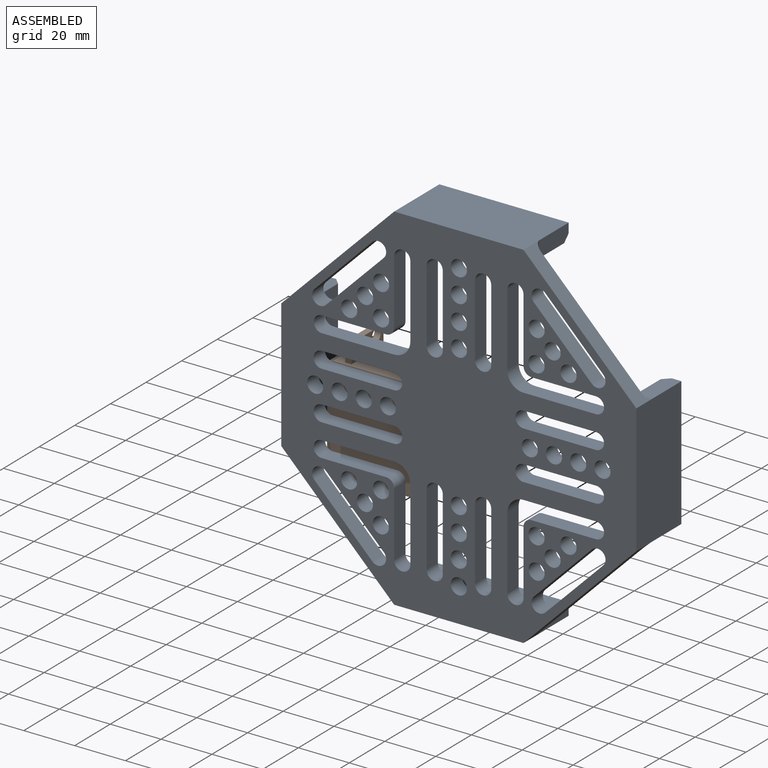
[diagram: assembled view]
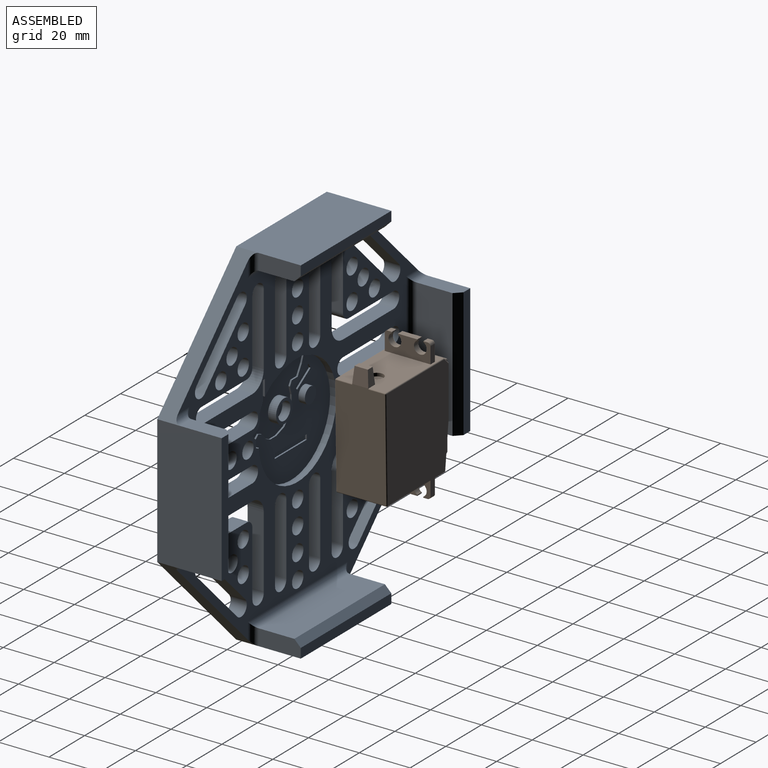
[diagram: assembled view, second angle]
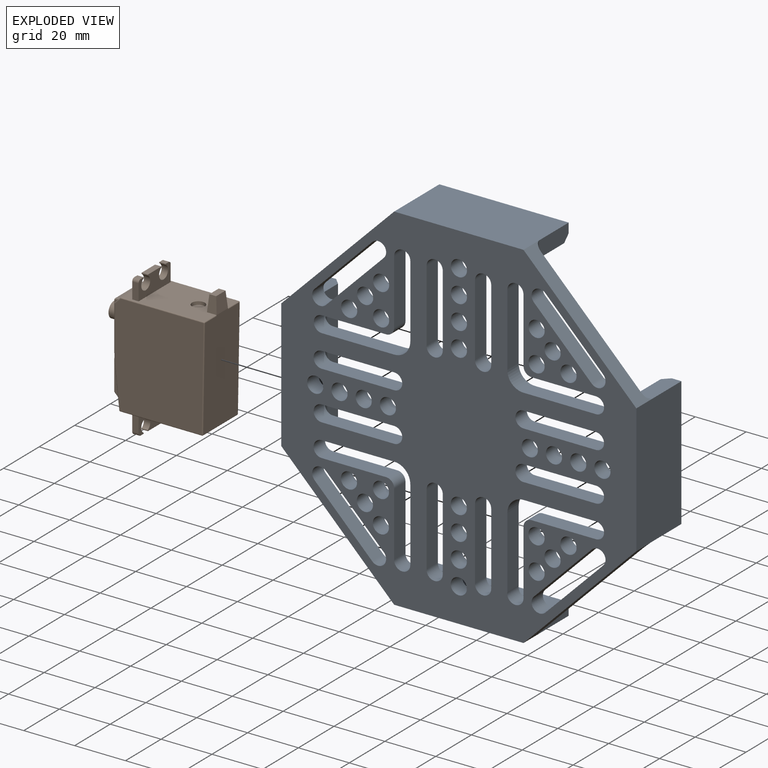
[diagram: exploded view]
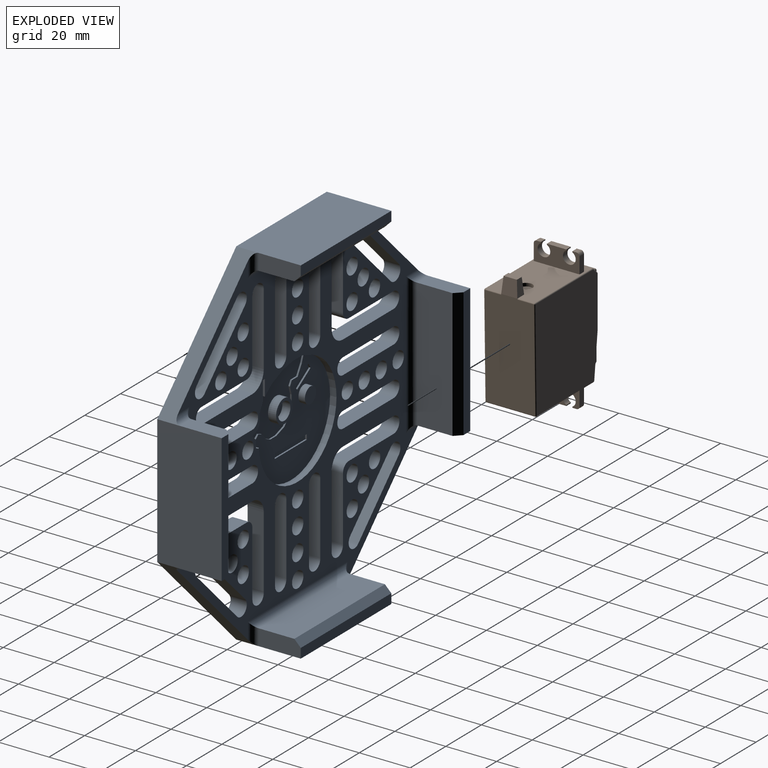
[diagram: exploded view, second angle]
ASSEMBLY  parts=2 mates=2
PART A: 208 faces, bbox 139.6x25.4x139.8 mm
  f0: cylinder r=1.23mm len=2.46mm, axis (0,1,0), area 4.9mm2, adj f173,f175
  f1: cylinder r=1.23mm len=2.46mm, axis (0,1,0), area 4.9mm2, adj f173,f174
  f2: cylinder r=1.23mm len=2.46mm, axis (0,1,0), area 4.9mm2, adj f173,f181
  f3: cylinder r=21.83mm len=43.62mm, axis (0,1,0), area 243.5mm2, adj f4,f5,f144,f145
  f4: plane 43.62x42.94mm, normal (0,1,0), area 968.1mm2, adj f3,f139,f140,f141,f142,f144,f145,f147
  f5: plane 134.66x134.55mm, normal (0,1,0), area 6670.3mm2, adj f3,f27,f28,f29,f30,f31,f32,f33
  f6: plane 139.76x139.62mm, normal (0,-1,0), area 10190.2mm2, adj f7,f8,f9,f10,f27,f28,f29,f30
  f7: plane 50.76x25.32mm, normal (-1,0,0), area 1285.2mm2, adj f6,f15,f16,f17,f28,f29
  f8: plane 50.85x25.37mm, normal (0,0,1), area 1290.3mm2, adj f6,f19,f20,f21,f29,f30
  f9: plane 50.76x25.32mm, normal (1,0,0), area 1285.2mm2, adj f6,f11,f12,f13,f27,f30
  f10: plane 50.85x25.37mm, normal (0,0,-1), area 1290.3mm2, adj f6,f23,f24,f25,f27,f28
  f11: plane 16.43x6.35mm, normal (0,0,-1), area 101.1mm2, adj f9,f13,f14,f42,f191
  f12: plane 16.43x6.35mm, normal (0,0,1), area 101.1mm2, adj f9,f13,f14,f41,f191
  f13: plane 50.76x3.81mm, normal (0,1,0), area 193.4mm2, adj f9,f11,f12,f191
  f14: plane 50.76x13.89mm, normal (-1,0,0), area 705.1mm2, adj f11,f12,f31,f191
  f15: plane 16.43x6.35mm, normal (0,0,-1), area 101.1mm2, adj f7,f16,f18,f37,f190
  f16: plane 50.76x3.81mm, normal (0,1,0), area 193.4mm2, adj f7,f15,f17,f190
  f17: plane 16.43x6.35mm, normal (0,0,1), area 101.1mm2, adj f7,f16,f18,f36,f190
  f18: plane 50.76x13.89mm, normal (1,0,0), area 705.1mm2, adj f15,f17,f33,f190
  f19: plane 16.48x6.35mm, normal (-1,0,0), area 101.4mm2, adj f8,f20,f22,f39,f189
  f20: plane 50.85x3.81mm, normal (0,1,0), area 193.7mm2, adj f8,f19,f21,f189
  f21: plane 16.48x6.35mm, normal (1,0,0), area 101.4mm2, adj f8,f20,f22,f40,f189
  f22: plane 50.85x13.94mm, normal (0,0,-1), area 709mm2, adj f19,f21,f32,f189
  f23: plane 16.48x6.35mm, normal (1,0,0), area 101.4mm2, adj f10,f24,f26,f35,f188
  f24: plane 50.85x3.81mm, normal (0,1,0), area 193.7mm2, adj f10,f23,f25,f188
  f25: plane 16.48x6.35mm, normal (-1,0,0), area 101.4mm2, adj f10,f24,f26,f38,f188
  f26: plane 50.85x13.94mm, normal (0,0,1), area 709mm2, adj f23,f25,f34,f188
  f27: plane 44.52x44.38mm, normal (0.71,0,-0.71), area 403.1mm2, adj f5,f6,f9,f10,f35,f42
  f28: plane 44.52x44.38mm, normal (-0.71,0,-0.71), area 403.1mm2, adj f5,f6,f7,f10,f37,f38
  f29: plane 44.48x44.38mm, normal (-0.71,0,0.71), area 402.9mm2, adj f5,f6,f7,f8,f36,f39
  f30: plane 44.48x44.38mm, normal (0.71,0,0.71), area 402.9mm2, adj f5,f6,f8,f9,f40,f41
  f31: cylinder r=2.54mm len=55.84mm, axis (0,0,1), area 209.9mm2, adj f5,f14,f41,f42
  f32: cylinder r=2.54mm len=55.93mm, axis (1,0,0), area 210.3mm2, adj f5,f22,f39,f40
  f33: cylinder r=2.54mm len=55.84mm, axis (0,0,1), area 209.9mm2, adj f5,f18,f36,f37
  f34: cylinder r=2.54mm len=55.93mm, axis (-1,0,0), area 210.3mm2, adj f5,f26,f35,f38
  f35: cylinder r=2.54mm len=8.89mm, axis (0,0,-1), area 25.3mm2, adj f5,f23,f27,f34
  f36: cylinder r=2.54mm len=8.89mm, axis (-1,0,0), area 25.3mm2, adj f5,f17,f29,f33
  f37: cylinder r=2.54mm len=8.89mm, axis (-1,0,0), area 25.3mm2, adj f5,f15,f28,f33
  f38: cylinder r=2.54mm len=8.89mm, axis (0,0,-1), area 25.3mm2, adj f5,f25,f28,f34
  f39: cylinder r=2.54mm len=8.89mm, axis (0,0,-1), area 25.3mm2, adj f5,f19,f29,f32
  f40: cylinder r=2.54mm len=8.89mm, axis (0,0,1), area 25.3mm2, adj f5,f21,f30,f32
  f41: cylinder r=2.54mm len=8.89mm, axis (1,0,0), area 25.3mm2, adj f5,f12,f30,f31
  f42: cylinder r=2.54mm len=8.89mm, axis (1,0,0), area 25.3mm2, adj f5,f11,f27,f31
  f43: cylinder r=3.17mm len=6.35mm, axis (0,1,0), area 63.3mm2, adj f5,f6,f44,f46
  f44: plane 28.51x6.35mm, normal (0,0,-1), area 181mm2, adj f5,f6,f43,f45
  f45: cylinder r=3.17mm len=6.35mm, axis (0,1,0), area 63.3mm2, adj f5,f6,f44,f46
  f46: plane 28.51x6.35mm, normal (0,0,1), area 181mm2, adj f5,f6,f43,f45
  f47: cylinder r=3.17mm len=6.35mm, axis (0,1,0), area 63.3mm2, adj f5,f6,f48,f50
  f48: plane 28.51x6.35mm, normal (0,0,-1), area 181mm2, adj f5,f6,f47,f49
  f49: cylinder r=3.17mm len=6.35mm, axis (0,1,0), area 63.3mm2, adj f5,f6,f48,f50
  f50: plane 28.51x6.35mm, normal (0,0,1), area 181mm2, adj f5,f6,f47,f49
  f51: cylinder r=3.17mm len=6.35mm, axis (0,1,0), area 63.3mm2, adj f5,f6,f52,f58
  f52: plane 28.55x6.35mm, normal (-1,0,0), area 181.3mm2, adj f5,f6,f51,f53
  f53: cylinder r=6.35mm len=6.41mm, axis (0,1,0), area 63.7mm2, adj f5,f6,f52,f54
  f54: plane 28.43x6.35mm, normal (0,0,1), area 180.5mm2, adj f5,f6,f53,f55
  f55: cylinder r=3.17mm len=6.35mm, axis (0,1,0), area 63.3mm2, adj f5,f6,f54,f56
  f56: plane 25.25x6.35mm, normal (0,0,-1), area 160.3mm2, adj f5,f6,f55,f57
  f57: cylinder r=3.17mm len=6.35mm, axis (0,1,0), area 31.7mm2, adj f5,f6,f56,f58
  f58: plane 25.43x6.35mm, normal (1,0,0), area 161.5mm2, adj f5,f6,f51,f57
  f59: cylinder r=3.18mm len=6.35mm, axis (0,1,0), area 64.4mm2, adj f5,f6,f60,f66
  f60: plane 28.51x6.35mm, normal (0,0,-1), area 181mm2, adj f5,f6,f59,f61
  f61: cylinder r=6.35mm len=6.35mm, axis (0,1,0), area 62.8mm2, adj f5,f6,f60,f62
  f62: plane 28.64x6.35mm, normal (-1,0,0), area 181.9mm2, adj f5,f6,f61,f63
  f63: cylinder r=3.17mm len=6.35mm, axis (0,1,0), area 63.3mm2, adj f5,f6,f62,f64
  f64: plane 25.47x6.35mm, normal (1,0,0), area 161.7mm2, adj f5,f6,f63,f65
  f65: cylinder r=3.17mm len=6.35mm, axis (0,1,0), area 31.7mm2, adj f5,f6,f64,f66
  f66: plane 25.25x6.35mm, normal (0,0,1), area 160.3mm2, adj f5,f6,f59,f65
  f67: cylinder r=3.17mm len=6.35mm, axis (0,1,0), area 63.3mm2, adj f5,f6,f68,f70
  f68: plane 28.51x6.35mm, normal (1,0,0), area 181mm2, adj f5,f6,f67,f69
  f69: cylinder r=3.17mm len=6.35mm, axis (0,1,0), area 63.3mm2, adj f5,f6,f68,f70
  f70: plane 28.51x6.35mm, normal (-1,0,0), area 181mm2, adj f5,f6,f67,f69
  f71: cylinder r=3.17mm len=6.35mm, axis (0,1,0), area 63.3mm2, adj f5,f6,f72,f74
  f72: plane 28.51x6.35mm, normal (1,0,0), area 181mm2, adj f5,f6,f71,f73
  f73: cylinder r=3.17mm len=6.35mm, axis (0,1,0), area 63.3mm2, adj f5,f6,f72,f74
  f74: plane 28.51x6.35mm, normal (-1,0,0), area 181mm2, adj f5,f6,f71,f73
  f75: cylinder r=3.17mm len=6.35mm, axis (0,1,0), area 63.3mm2, adj f5,f6,f76,f78
  f76: plane 28.51x6.35mm, normal (0,0,1), area 181mm2, adj f5,f6,f75,f77
  f77: cylinder r=3.17mm len=6.35mm, axis (0,1,0), area 63.3mm2, adj f5,f6,f76,f78
  f78: plane 28.51x6.35mm, normal (0,0,-1), area 181mm2, adj f5,f6,f75,f77
  f79: cylinder r=3.17mm len=6.35mm, axis (0,1,0), area 63.3mm2, adj f5,f6,f80,f82
  f80: plane 28.51x6.35mm, normal (0,0,1), area 181mm2, adj f5,f6,f79,f81
  f81: cylinder r=3.17mm len=6.35mm, axis (0,1,0), area 63.3mm2, adj f5,f6,f80,f82
  f82: plane 28.51x6.35mm, normal (0,0,-1), area 181mm2, adj f5,f6,f79,f81
  f83: cylinder r=3.17mm len=6.35mm, axis (0,1,0), area 63.3mm2, adj f5,f6,f84,f86
  f84: plane 28.51x6.35mm, normal (-1,0,0), area 181mm2, adj f5,f6,f83,f85
  f85: cylinder r=3.17mm len=6.35mm, axis (0,1,0), area 63.3mm2, adj f5,f6,f84,f86
  f86: plane 28.51x6.35mm, normal (1,0,0), area 181mm2, adj f5,f6,f83,f85
  f87: cylinder r=3.17mm len=6.35mm, axis (0,1,0), area 63.3mm2, adj f5,f6,f88,f90
  f88: plane 28.51x6.35mm, normal (1,0,0), area 181mm2, adj f5,f6,f87,f89
  f89: cylinder r=3.17mm len=6.35mm, axis (0,1,0), area 63.3mm2, adj f5,f6,f88,f90
  f90: plane 28.51x6.35mm, normal (-1,0,0), area 181mm2, adj f5,f6,f87,f89
  f91: cylinder r=3.19mm len=6.39mm, axis (0,1,0), area 67.2mm2, adj f5,f6,f92,f98
  f92: plane 28.08x6.35mm, normal (1,0,0), area 178.3mm2, adj f5,f6,f91,f93
  f93: cylinder r=6.35mm len=6.4mm, axis (0,1,0), area 63.6mm2, adj f5,f6,f92,f94
  f94: plane 28.51x6.35mm, normal (0,0,-1), area 181mm2, adj f5,f6,f93,f95
  f95: cylinder r=3.17mm len=6.35mm, axis (0,1,0), area 63.3mm2, adj f5,f6,f94,f96
  f96: plane 25.33x6.35mm, normal (0,0,1), area 160.9mm2, adj f5,f6,f95,f97
  f97: cylinder r=3.17mm len=6.35mm, axis (0,1,0), area 31.7mm2, adj f5,f6,f96,f98
  f98: plane 25.38x6.35mm, normal (-1,0,0), area 161.2mm2, adj f5,f6,f91,f97
  f99: cylinder r=3.17mm len=6.35mm, axis (0,1,0), area 63.3mm2, adj f5,f6,f100,f106
  f100: plane 25.39x6.35mm, normal (-1,0,0), area 161.2mm2, adj f5,f6,f99,f101
  f101: cylinder r=3.17mm len=6.35mm, axis (0,1,0), area 31.7mm2, adj f5,f6,f100,f102
  f102: plane 25.33x6.35mm, normal (0,0,-1), area 160.9mm2, adj f5,f6,f101,f103
  f103: cylinder r=3.17mm len=6.35mm, axis (0,1,0), area 63.3mm2, adj f5,f6,f102,f104
  f104: plane 28.51x6.35mm, normal (0,0,1), area 181mm2, adj f5,f6,f103,f105
  f105: cylinder r=6.35mm len=6.39mm, axis (0,1,0), area 63.6mm2, adj f5,f6,f104,f106
  f106: plane 28.53x6.35mm, normal (1,0,0), area 181.1mm2, adj f5,f6,f99,f105
  f107: plane 22.79x22.74mm, normal (-0.71,0,0.71), area 204.5mm2, adj f5,f6,f108,f110
  f108: cylinder r=3.17mm len=6.35mm, axis (0,1,0), area 63.3mm2, adj f5,f6,f107,f109
  f109: plane 22.79x22.74mm, normal (0.71,0,-0.71), area 204.5mm2, adj f5,f6,f108,f110
  f110: cylinder r=3.17mm len=6.35mm, axis (0,1,0), area 63.3mm2, adj f5,f6,f107,f109
  f111: cylinder r=3.17mm len=6.35mm, axis (0,1,0), area 126.7mm2, adj f5,f6
  f112: cylinder r=3.17mm len=6.35mm, axis (0,1,0), area 126.7mm2, adj f5,f6
  f113: plane 22.79x22.74mm, normal (0.71,0,0.71), area 204.5mm2, adj f5,f6,f114,f116
  f114: cylinder r=3.17mm len=6.35mm, axis (0,1,0), area 63.3mm2, adj f5,f6,f113,f115
  f115: plane 22.79x22.74mm, normal (-0.71,0,-0.71), area 204.5mm2, adj f5,f6,f114,f116
  f116: cylinder r=3.17mm len=6.35mm, axis (0,1,0), area 63.3mm2, adj f5,f6,f113,f115
  f117: cylinder r=3.17mm len=6.35mm, axis (0,1,0), area 126.7mm2, adj f5,f6
  f118: cylinder r=3.17mm len=6.35mm, axis (0,1,0), area 126.7mm2, adj f5,f6
  f119: cylinder r=3.17mm len=6.35mm, axis (0,1,0), area 126.7mm2, adj f5,f6
  f120: cylinder r=3.17mm len=6.35mm, axis (0,1,0), area 126.7mm2, adj f5,f6
  f121: cylinder r=3.17mm len=6.35mm, axis (0,1,0), area 126.7mm2, adj f5,f6
  f122: cylinder r=3.17mm len=6.35mm, axis (0,1,0), area 126.7mm2, adj f5,f6
  f123: plane 22.8x22.73mm, normal (0.71,0,-0.71), area 204.5mm2, adj f5,f6,f124,f126
  f124: cylinder r=3.17mm len=6.35mm, axis (0,1,0), area 63.3mm2, adj f5,f6,f123,f125
  f125: plane 22.8x22.73mm, normal (-0.71,0,0.71), area 204.5mm2, adj f5,f6,f124,f126
  f126: cylinder r=3.17mm len=6.35mm, axis (0,1,0), area 63.3mm2, adj f5,f6,f123,f125
  f127: plane 22.8x22.73mm, normal (-0.71,0,-0.71), area 204.5mm2, adj f5,f6,f128,f130
  f128: cylinder r=3.17mm len=6.35mm, axis (0,1,0), area 63.3mm2, adj f5,f6,f127,f129
  f129: plane 22.8x22.73mm, normal (0.71,0,0.71), area 204.5mm2, adj f5,f6,f128,f130
  f130: cylinder r=3.17mm len=6.35mm, axis (0,1,0), area 63.3mm2, adj f5,f6,f127,f129
  f131: cylinder r=3.17mm len=6.35mm, axis (0,1,0), area 126.7mm2, adj f5,f6
  f132: cylinder r=3.17mm len=6.35mm, axis (0,1,0), area 126.7mm2, adj f5,f6
  f133: cylinder r=3.17mm len=6.35mm, axis (0,1,0), area 126.7mm2, adj f5,f6
  f134: cylinder r=3.17mm len=6.35mm, axis (0,1,0), area 126.7mm2, adj f5,f6
  f135: cylinder r=3.17mm len=6.35mm, axis (0,1,0), area 126.7mm2, adj f5,f6
  f136: cylinder r=3.17mm len=6.35mm, axis (0,1,0), area 126.7mm2, adj f5,f6
  f137: cylinder r=3.17mm len=6.35mm, axis (0,1,0), area 126.7mm2, adj f5,f6
  f138: cylinder r=3.17mm len=6.35mm, axis (0,1,0), area 126.7mm2, adj f5,f6
  f139: plane 1.9x1.23mm, normal (0.84,0,-0.54), area 1.4mm2, adj f4,f140,f142,f143
  f140: plane 7.61x5.43mm, normal (-0.58,0,-0.81), area 5.9mm2, adj f4,f139,f141,f143
  f141: plane 1.38x1.28mm, normal (-0.73,0,0.68), area 1.2mm2, adj f4,f140,f142,f143
  f142: plane 7.57x4.91mm, normal (0.54,0,0.84), area 5.7mm2, adj f4,f139,f141,f143
  f143: plane 8.84x6.81mm, normal (0,1,0), area 18.9mm2, adj f139,f140,f141,f142
  f144: plane 3.18x1.38mm, normal (0.68,0,0.73), area 1.9mm2, adj f3,f4,f5,f146,f147,f173
  f145: plane 4.4x3.18mm, normal (0.34,0,-0.94), area 10.7mm2, adj f3,f4,f5,f159,f160,f173
  f146: plane 3.18x1.38mm, normal (-0.45,0,0.89), area 4.9mm2, adj f5,f144,f172,f173
  f147: plane 2.26x1.77mm, normal (0.62,0,0.79), area 1.8mm2, adj f4,f144,f148,f173
  f148: plane 1.97x0.79mm, normal (-0.37,0,0.93), area 1.3mm2, adj f4,f147,f149,f173
  f149: plane 2.46x2.16mm, normal (-0.75,0,0.66), area 2.1mm2, adj f4,f148,f150,f173
  f150: plane 2.53x1.17mm, normal (-0.42,0,0.91), area 1.8mm2, adj f4,f149,f151,f173
  f151: plane 3.43x0.64mm, normal (0,0,1), area 2.2mm2, adj f4,f150,f152,f173
  f152: plane 4.44x1.52mm, normal (0.32,0,0.95), area 3mm2, adj f4,f151,f153,f173
  f153: plane 4.21x4.09mm, normal (0.72,0,0.7), area 3.7mm2, adj f4,f152,f154,f173
  f154: plane 5.72x0.64mm, normal (1,0,0), area 3.6mm2, adj f4,f153,f155,f173
  f155: plane 3.15x0.93mm, normal (0.96,0,-0.28), area 2.1mm2, adj f4,f154,f156,f173
  f156: plane 1.87x1.05mm, normal (0.87,0,0.49), area 1.4mm2, adj f4,f155,f157,f173
  f157: plane 3.29x0.64mm, normal (0,0,1), area 2.1mm2, adj f4,f156,f158,f173
  f158: plane 3.91x2.3mm, normal (0.86,0,0.51), area 2.9mm2, adj f4,f157,f159,f173
  f159: plane 3.12x1.14mm, normal (0.94,0,0.34), area 2.1mm2, adj f4,f145,f158,f173
  f160: plane 5.33x3.18mm, normal (0,0,-1), area 16.9mm2, adj f5,f145,f161,f173
  f161: plane 5.82x3.18mm, normal (-0.18,0,-0.98), area 18.8mm2, adj f5,f160,f162,f173
  f162: plane 6.19x3.18mm, normal (-0.39,0,-0.92), area 21.4mm2, adj f5,f161,f163,f173
  f163: plane 3.73x3.18mm, normal (-0.62,0,-0.78), area 15.1mm2, adj f5,f162,f164,f173
  f164: plane 6.29x3.18mm, normal (1,0,0), area 20mm2, adj f5,f163,f165,f173
  f165: plane 3.18x1.18mm, normal (0,0,-1), area 3.7mm2, adj f5,f164,f166,f173
  f166: plane 7.66x3.18mm, normal (-1,0,0), area 24.3mm2, adj f5,f165,f167,f173
  f167: plane 3.64x3.18mm, normal (-0.89,0,-0.46), area 13mm2, adj f5,f166,f168,f173
  f168: plane 3.73x3.18mm, normal (-1,0,0), area 11.9mm2, adj f5,f167,f169,f173
  f169: plane 3.18x1.57mm, normal (-0.85,0,-0.53), area 5.9mm2, adj f5,f168,f170,f173
  f170: plane 3.18x3.01mm, normal (-0.34,0,-0.94), area 10.1mm2, adj f5,f169,f171,f173
  f171: plane 3.18x2.06mm, normal (-0.71,0,0.7), area 9.2mm2, adj f5,f170,f172,f173
  f172: plane 3.18x2.95mm, normal (-1,0,0), area 9.4mm2, adj f5,f146,f171,f173
  f173: plane 32.51x25.12mm, normal (0,1,0), area 423.7mm2, adj f0,f1,f2,f144,f145,f146,f147,f148
  f174: plane 2.46x2.46mm, normal (0,1,0), area 4.8mm2, adj f1
  f175: plane 2.46x2.46mm, normal (0,1,0), area 4.8mm2, adj f0
  f176: plane 17.98x0.64mm, normal (0,0,-1), area 11.4mm2, adj f4,f177,f179,f180
  f177: plane 1.97x0.64mm, normal (-1,0,0), area 1.2mm2, adj f4,f176,f178,f180
  f178: plane 17.98x0.64mm, normal (0,0,1), area 11.4mm2, adj f4,f177,f179,f180
  f179: plane 1.97x0.64mm, normal (1,0,0), area 1.2mm2, adj f4,f176,f178,f180
  f180: plane 17.98x1.97mm, normal (0,1,0), area 35.3mm2, adj f176,f177,f178,f179
  f181: plane 2.46x2.46mm, normal (0,1,0), area 4.8mm2, adj f2
  f182: cylinder r=3.45mm len=6.9mm, axis (0,1,0), area 68.8mm2, adj f184,f185
  f183: cylinder r=4.6mm len=9.2mm, axis (0,1,0), area 91.8mm2, adj f173,f184
  f184: plane 9.2x9.2mm, normal (0,1,0), area 29.1mm2, adj f182,f183
  f185: plane 6.9x6.9mm, normal (0,1,0), area 37.4mm2, adj f182
  f186: cylinder r=3.17mm len=6.34mm, axis (0,1,0), area 50.6mm2, adj f4,f187
  f187: plane 6.34x6.34mm, normal (0,1,0), area 31.6mm2, adj f186
  f188: plane 50.85x2.54mm, normal (0,0.71,0.71), area 182.7mm2, adj f23,f24,f25,f26
  f189: plane 50.85x2.54mm, normal (0,0.71,-0.71), area 182.7mm2, adj f19,f20,f21,f22
  f190: plane 50.76x2.54mm, normal (0.71,0.71,0), area 182.3mm2, adj f15,f16,f17,f18
  f191: plane 50.76x2.54mm, normal (-0.71,0.71,0), area 182.3mm2, adj f11,f12,f13,f14
  f192: cylinder r=3.17mm len=6.35mm, axis (0,1,0), area 126.7mm2, adj f5,f6
  f193: cylinder r=3.17mm len=6.35mm, axis (0,1,0), area 126.7mm2, adj f5,f6
  f194: cylinder r=3.17mm len=6.35mm, axis (0,1,0), area 126.7mm2, adj f5,f6
  f195: cylinder r=3.17mm len=6.35mm, axis (0,1,0), area 126.7mm2, adj f5,f6
  f196: cylinder r=3.17mm len=6.35mm, axis (0,1,0), area 126.7mm2, adj f5,f6
  f197: cylinder r=3.17mm len=6.35mm, axis (0,1,0), area 126.7mm2, adj f5,f6
  f198: cylinder r=3.17mm len=6.35mm, axis (0,1,0), area 126.7mm2, adj f5,f6
  f199: cylinder r=3.17mm len=6.35mm, axis (0,1,0), area 126.7mm2, adj f5,f6
  f200: cylinder r=3.17mm len=6.35mm, axis (0,1,0), area 126.7mm2, adj f5,f6
  f201: cylinder r=3.17mm len=6.35mm, axis (0,1,0), area 126.7mm2, adj f5,f6
  f202: cylinder r=3.17mm len=6.35mm, axis (0,1,0), area 126.7mm2, adj f5,f6
  f203: cylinder r=3.17mm len=6.35mm, axis (0,1,0), area 126.7mm2, adj f5,f6
  f204: cylinder r=3.17mm len=6.35mm, axis (0,1,0), area 126.7mm2, adj f5,f6
  f205: cylinder r=3.17mm len=6.35mm, axis (0,1,0), area 126.7mm2, adj f5,f6
  f206: cylinder r=3.17mm len=6.35mm, axis (0,1,0), area 126.7mm2, adj f5,f6
  f207: cylinder r=3.17mm len=6.35mm, axis (0,1,0), area 126.7mm2, adj f5,f6
PART B: 118 faces, bbox 20.1x42.7x55.7 mm
  f0: plane 32.47x19.3mm, normal (0,0,1), area 537.9mm2, adj f39,f44,f54,f55,f56,f58,f59,f60
  f1: plane 10.03x10.03mm, normal (0,-1,0), area 51.1mm2, adj f2,f116
  f2: cylinder r=5.02mm len=10.03mm, axis (0,1,0), area 16mm2, adj f1,f3
  f3: plane 11.67x11.67mm, normal (0,-1,0), area 27.9mm2, adj f2,f4
  f4: cone r=7.18mm half-angle=20deg, axis (0,1,0), area 73.2mm2, adj f3,f16
  f5: plane 2.5x1.68mm, normal (0,0,-1), area 4.2mm2, adj f6,f18,f23,f67
  f6: plane 2.5x0.37mm, normal (-1,0,0), area 0.9mm2, adj f5,f7,f18,f23
  f7: cylinder r=2.5mm len=5mm, axis (0,1,0), area 33.1mm2, adj f6,f8,f18,f23
  f8: plane 2.5x0.37mm, normal (1,0,0), area 0.9mm2, adj f7,f9,f18,f23
  f9: plane 7.64x2.5mm, normal (0,0,-1), area 19.1mm2, adj f8,f10,f18,f23
  f10: plane 2.5x0.37mm, normal (-1,0,0), area 0.9mm2, adj f9,f11,f18,f23
  f11: cylinder r=2.5mm len=5mm, axis (0,1,0), area 33.1mm2, adj f10,f12,f18,f23
  f12: plane 2.5x0.37mm, normal (1,0,0), area 0.9mm2, adj f11,f13,f18,f23
  f13: plane 2.5x1.68mm, normal (0,0,-1), area 4.2mm2, adj f12,f18,f23,f66
  f14: plane 1x0.73mm, normal (0,0,-1), area 0.7mm2, adj f21,f23,f112,f115
  f15: plane 17.91x14.67mm, normal (0,-1,0), area 231.9mm2, adj f27,f28,f29,f30,f31,f32,f106,f107
  f16: plane 19.53x17.91mm, normal (0,-1,0), area 208.2mm2, adj f4,f24,f25,f26,f33,f34,f35,f104
  f17: plane 6.36x2.5mm, normal (-1,0,0), area 15.9mm2, adj f18,f23,f36,f66
  f18: plane 18x7.5mm, normal (0,1,0), area 94.4mm2, adj f5,f6,f7,f8,f9,f10,f11,f12
  f19: plane 6.36x2.5mm, normal (1,0,0), area 15.9mm2, adj f18,f23,f36,f67
  f20: plane 3.37x1mm, normal (1,0,0), area 3.4mm2, adj f21,f23,f36,f112
  f21: plane 4x2mm, normal (0,-1,0), area 7.8mm2, adj f14,f20,f22,f36,f112,f115
  f22: plane 3.37x1mm, normal (-1,0,0), area 3.4mm2, adj f21,f23,f36,f115
  f23: plane 18x7.5mm, normal (0,-1,0), area 86.6mm2, adj f5,f6,f7,f8,f9,f10,f11,f12
  f24: plane 6x0.64mm, normal (0,0,-1), area 3.8mm2, adj f16,f25,f37,f105
  f25: cylinder r=3.37mm len=6.23mm, axis (0,-1,0), area 5.1mm2, adj f16,f24,f26,f37
  f26: plane 4.92x0.64mm, normal (0,0,-1), area 3.1mm2, adj f16,f25,f37,f104
  f27: plane 5.94x0.64mm, normal (0,0,1), area 3.8mm2, adj f15,f28,f37,f107
  f28: cylinder r=2.1mm len=4.19mm, axis (0,-1,0), area 4.2mm2, adj f15,f27,f29,f37
  f29: plane 7.02x0.64mm, normal (0,0,1), area 4.5mm2, adj f15,f28,f37,f106
  f30: plane 17.15x2.21mm, normal (0,-0.71,-0.71), area 53.6mm2, adj f15,f38,f108,f109
  f31: plane 13.8x2.15mm, normal (1,0,0), area 16.9mm2, adj f15,f37,f38,f71,f107,f108
  f32: plane 13.8x2.15mm, normal (-1,0,0), area 16.9mm2, adj f15,f37,f38,f75,f106,f109
  f33: plane 19.17x1.54mm, normal (1,0,0), area 12.3mm2, adj f16,f37,f42,f74,f104,f110
  f34: plane 17.15x2.08mm, normal (0,-0.26,0.97), area 37mm2, adj f16,f42,f110,f111
  f35: plane 19.17x1.54mm, normal (-1,0,0), area 12.3mm2, adj f16,f37,f42,f84,f105,f111
  f36: plane 32.18x19.3mm, normal (0,0,-1), area 574.1mm2, adj f17,f18,f19,f20,f21,f22,f23,f87
  f37: plane 20.14x19.3mm, normal (0,-1,0), area 53.6mm2, adj f24,f25,f26,f27,f28,f29,f31,f32
  f38: plane 19.3x17.42mm, normal (0,-0.99,-0.11), area 79.7mm2, adj f30,f31,f32,f71,f75,f76,f86,f87
  f39: plane 18x7.5mm, normal (0,1,0), area 94.4mm2, adj f0,f44,f45,f46,f47,f48,f49,f50
  f40: plane 40.27x19.3mm, normal (0,1,-0.02), area 772.4mm2, adj f60,f61,f62,f80,f89,f97,f101,f103
  f41: plane 39.88x34.79mm, normal (1,0,0), area 1354.1mm2, adj f73,f76,f82,f83,f88,f89
  f42: plane 19.3x2.32mm, normal (0,-0.71,0.71), area 29.6mm2, adj f33,f34,f35,f74,f83,f84,f94,f95
  f43: plane 39.88x34.79mm, normal (-1,0,0), area 1354.1mm2, adj f85,f86,f95,f96,f100,f101
  f44: plane 6.36x2.5mm, normal (-1,0,0), area 15.9mm2, adj f0,f39,f55,f68
  f45: plane 2.5x1.68mm, normal (0,0,1), area 4.2mm2, adj f39,f46,f55,f68
  f46: plane 2.5x0.37mm, normal (1,0,0), area 0.9mm2, adj f39,f45,f47,f55
  f47: cylinder r=2.5mm len=5mm, axis (0,1,0), area 33.1mm2, adj f39,f46,f48,f55
  f48: plane 2.5x0.37mm, normal (-1,0,0), area 0.9mm2, adj f39,f47,f49,f55
  f49: plane 7.64x2.5mm, normal (0,0,1), area 19.1mm2, adj f39,f48,f50,f55
  f50: plane 2.5x0.37mm, normal (1,0,0), area 0.9mm2, adj f39,f49,f51,f55
  f51: cylinder r=2.5mm len=5mm, axis (0,1,0), area 33.1mm2, adj f39,f50,f52,f55
  f52: plane 2.5x0.37mm, normal (-1,0,0), area 0.9mm2, adj f39,f51,f53,f55
  f53: plane 2.5x1.68mm, normal (0,0,1), area 4.2mm2, adj f39,f52,f55,f65
  f54: plane 6.36x2.5mm, normal (1,0,0), area 15.9mm2, adj f0,f39,f55,f65
  f55: plane 18x7.5mm, normal (0,-1,0), area 86.6mm2, adj f0,f44,f45,f46,f47,f48,f49,f50
  f56: plane 4x2mm, normal (0,-1,0), area 7.8mm2, adj f0,f57,f58,f59,f113,f114
  f57: plane 1x0.73mm, normal (0,0,1), area 0.7mm2, adj f55,f56,f113,f114
  f58: plane 3.37x1mm, normal (1,0,0), area 3.4mm2, adj f0,f55,f56,f114
  f59: plane 3.37x1mm, normal (-1,0,0), area 3.4mm2, adj f0,f55,f56,f113
  f60: plane 6.75x3.82mm, normal (-1,0,0.09), area 20.8mm2, adj f0,f40,f61,f63,f64,f103
  f61: plane 6.35x6.35mm, normal (0,1,0.09), area 36.9mm2, adj f40,f60,f62,f64
  f62: plane 6.75x3.82mm, normal (1,0,0.09), area 20.8mm2, adj f0,f40,f61,f63,f64,f80
  f63: plane 6.35x6.35mm, normal (0,-1,0.09), area 36.9mm2, adj f0,f60,f62,f64
  f64: plane 5.24x2.7mm, normal (0,0,1), area 14.1mm2, adj f60,f61,f62,f63
  f65: cylinder r=1.14mm len=2.5mm, axis (0,1,0), area 4.5mm2, adj f39,f53,f54,f55
  f66: cylinder r=1.14mm len=2.5mm, axis (0,1,0), area 4.5mm2, adj f13,f17,f18,f23
  f67: cylinder r=1.14mm len=2.5mm, axis (0,1,0), area 4.5mm2, adj f5,f18,f19,f23
  f68: cylinder r=1.14mm len=2.5mm, axis (0,1,0), area 4.5mm2, adj f39,f44,f45,f55
  f69: cylinder r=2.54mm len=5.08mm, axis (0,0,1), area 20.3mm2, adj f0,f70
  f70: plane 5.08x5.08mm, normal (0,0,1), area 20.3mm2, adj f69
  f71: cylinder r=0.38mm len=0.7mm, axis (1,0,0), area 0mm2, adj f31,f37,f38,f72
  f72: sphere r=0.38mm, area 0mm2, adj f71,f73,f76
  f73: cylinder r=0.38mm len=20.14mm, axis (0,0,1), area 12.1mm2, adj f37,f41,f72,f77
  f74: cylinder r=0.38mm len=0.7mm, axis (1,0,0), area 0.2mm2, adj f33,f37,f42,f77
  f75: cylinder r=0.38mm len=0.7mm, axis (1,0,0), area 0mm2, adj f32,f37,f38,f78
  f76: cylinder r=0.38mm len=17.46mm, axis (0,-0.11,0.99), area 10.5mm2, adj f38,f41,f72,f79
  f77: sphere r=0.38mm, area 0.1mm2, adj f73,f74,f83
  f78: sphere r=0.38mm, area 0mm2, adj f75,f85,f86
  f79: sphere r=0.38mm, area 0.2mm2, adj f76,f87,f88
  f80: cylinder r=0.38mm len=6.48mm, axis (-1,0,0), area 3.9mm2, adj f0,f40,f62,f81
  f81: sphere r=0.38mm, area 0.2mm2, adj f80,f82,f89
  f82: cylinder r=0.38mm len=32.47mm, axis (0,-1,0), area 19.4mm2, adj f0,f41,f81,f90
  f83: cylinder r=0.38mm len=2.59mm, axis (0,0.71,0.71), area 2mm2, adj f41,f42,f77,f90
  f84: cylinder r=0.38mm len=0.7mm, axis (1,0,0), area 0.2mm2, adj f35,f37,f42,f91
  f85: cylinder r=0.38mm len=20.14mm, axis (0,0,1), area 12.1mm2, adj f37,f43,f78,f91
  f86: cylinder r=0.38mm len=17.46mm, axis (0,-0.11,0.99), area 10.5mm2, adj f38,f43,f78,f92
  f87: cylinder r=0.38mm len=19.3mm, axis (-1,0,0), area 10.7mm2, adj f36,f38,f79,f92
  f88: cylinder r=0.38mm len=32.18mm, axis (0,-1,0), area 19.3mm2, adj f36,f41,f79,f93
  f89: cylinder r=0.38mm len=39.88mm, axis (0,0.02,1), area 23.9mm2, adj f40,f41,f81,f93
  f90: sphere r=0.38mm, area 0.1mm2, adj f82,f83,f94
  f91: sphere r=0.38mm, area 0.1mm2, adj f84,f85,f95
  f92: sphere r=0.38mm, area 0.2mm2, adj f86,f87,f96
  f93: sphere r=0.38mm, area 0.2mm2, adj f88,f89,f97
  f94: cylinder r=0.38mm len=19.3mm, axis (-1,0,0), area 5.8mm2, adj f0,f42,f90,f98
  f95: cylinder r=0.38mm len=2.59mm, axis (0,0.71,0.71), area 2mm2, adj f42,f43,f91,f98
  f96: cylinder r=0.38mm len=32.18mm, axis (0,-1,0), area 19.3mm2, adj f36,f43,f92,f99
  f97: cylinder r=0.38mm len=19.3mm, axis (1,0,0), area 11.4mm2, adj f36,f40,f93,f99
  f98: sphere r=0.38mm, area 0.1mm2, adj f94,f95,f100
  f99: sphere r=0.38mm, area 0.2mm2, adj f96,f97,f101
  f100: cylinder r=0.38mm len=32.47mm, axis (0,-1,0), area 19.4mm2, adj f0,f43,f98,f102
  f101: cylinder r=0.38mm len=39.88mm, axis (0,-0.02,-1), area 23.9mm2, adj f40,f43,f99,f102
  f102: sphere r=0.38mm, area 0.2mm2, adj f100,f101,f103
  f103: cylinder r=0.38mm len=6.48mm, axis (-1,0,0), area 3.9mm2, adj f0,f40,f60,f102
  f104: cylinder r=0.38mm len=0.64mm, axis (0,-1,0), area 0.4mm2, adj f16,f26,f33,f37
  f105: cylinder r=0.38mm len=0.64mm, axis (0,-1,0), area 0.4mm2, adj f16,f24,f35,f37
  f106: cylinder r=0.38mm len=0.64mm, axis (0,-1,0), area 0.4mm2, adj f15,f29,f32,f37
  f107: cylinder r=0.38mm len=0.64mm, axis (0,-1,0), area 0.4mm2, adj f15,f27,f31,f37
  f108: cylinder r=0.38mm len=2.75mm, axis (0,-0.71,0.71), area 1.9mm2, adj f15,f30,f31,f38
  f109: cylinder r=0.38mm len=2.75mm, axis (0,-0.71,0.71), area 1.9mm2, adj f15,f30,f32,f38
  f110: cylinder r=0.38mm len=2.28mm, axis (0,-0.97,-0.26), area 1.2mm2, adj f16,f33,f34,f42
  f111: cylinder r=0.38mm len=2.28mm, axis (0,-0.97,-0.26), area 1.2mm2, adj f16,f34,f35,f42
  f112: cylinder r=0.64mm len=1mm, axis (0,1,0), area 1mm2, adj f14,f20,f21,f23
  f113: cylinder r=0.64mm len=1mm, axis (0,1,0), area 1mm2, adj f55,f56,f57,f59
  f114: cylinder r=0.64mm len=1mm, axis (0,1,0), area 1mm2, adj f55,f56,f57,f58
  f115: cylinder r=0.64mm len=1mm, axis (0,1,0), area 1mm2, adj f14,f21,f22,f23
  f116: cylinder r=2.98mm len=5.97mm, axis (0,1,0), area 78.6mm2, adj f1,f117
  f117: plane 5.97x5.97mm, normal (0,-1,0), area 28mm2, adj f116
PLACE A t=(22.05,1.73,-39.21)mm
PLACE B rot(axis=(0,0,-1),90deg) t=(32.59,18.11,-125.78)mm
MATE planar B.f116 <-> A.f18  axis (-1,0,0) through (28.4,18.11,-112.8)mm
MATE planar B.f41 <-> A.f5  axis (0,-1,0) through (53.35,8.08,-122.31)mm
